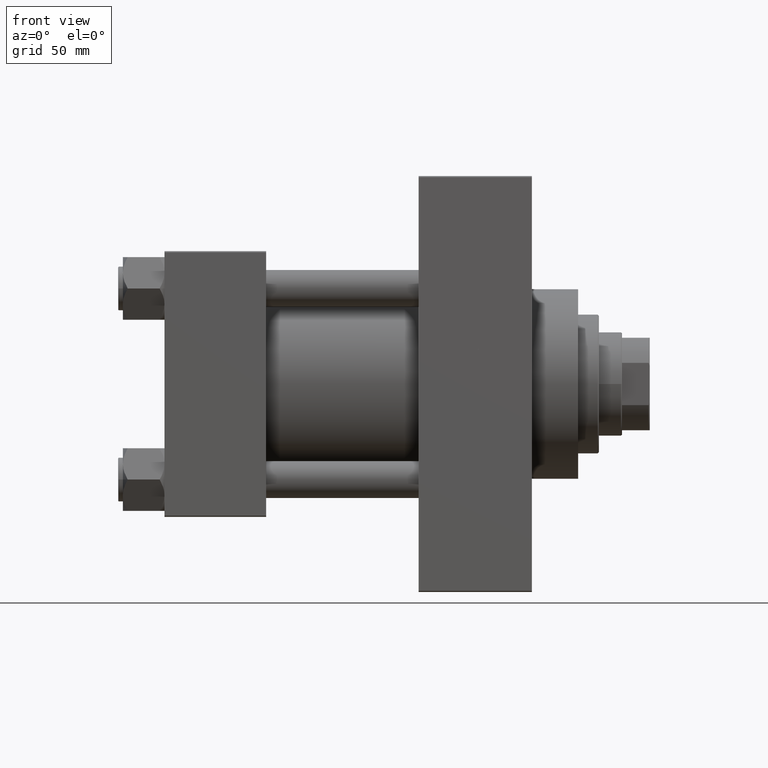
[diagram: clean part render]
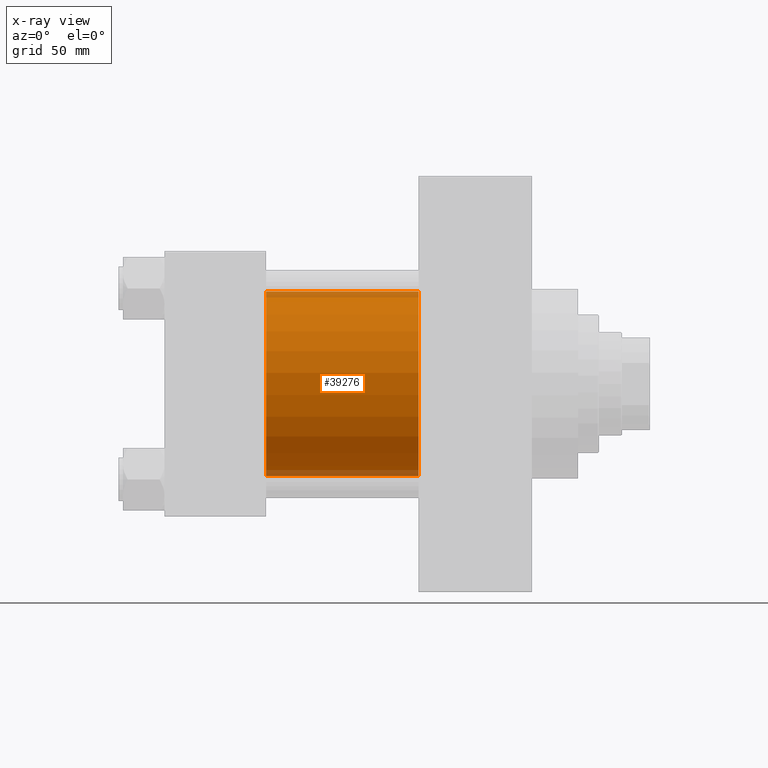
[diagram: x-ray — body ghosted, one internal face saturated and labeled with its STEP entity id]
A machine part, front view, then the same camera in x-ray: the body is ghosted and one INTERNAL B-rep face — a face not visible from any outside direction — is saturated and labeled: STEP entity #39276.
In plain terms, the highlighted cylindrical surface (partial cylindrical patch) has radius 40 mm, axis along (-1, -0, -0).
Its self-contained STEP definition (entity closure, byte-faithful):
#876 = CARTESIAN_POINT ( 'NONE',  ( 110.0000000000000000, 2.296501982624201990E-15, -40.00000000000000000 ) ) ;
#1167 = CIRCLE ( 'NONE', #22114, 40.00000000000000000 ) ;
#1912 = DIRECTION ( 'NONE',  ( 1.000000000000000000, 0.000000000000000000, 0.000000000000000000 ) ) ;
#2225 = CARTESIAN_POINT ( 'NONE',  ( 44.00000000000000000, 2.296501982624201990E-15, -40.00000000000000000 ) ) ;
#5518 = EDGE_CURVE ( 'NONE', #20764, #43881, #8199, .T. ) ;
#6215 = ORIENTED_EDGE ( 'NONE', *, *, #20526, .F. ) ;
#8199 = LINE ( 'NONE', #876, #26031 ) ;
#8864 = VERTEX_POINT ( 'NONE', #33333 ) ;
#11518 = EDGE_CURVE ( 'NONE', #29040, #20764, #1167, .T. ) ;
#14256 = AXIS2_PLACEMENT_3D ( 'NONE', #36426, #1912, #45457 ) ;
#15527 = DIRECTION ( 'NONE',  ( -1.000000000000000000, -0.000000000000000000, -0.000000000000000000 ) ) ;
#18758 = ORIENTED_EDGE ( 'NONE', *, *, #11518, .T. ) ;
#19294 = DIRECTION ( 'NONE',  ( 0.000000000000000000, 0.000000000000000000, 1.000000000000000000 ) ) ;
#20415 = AXIS2_PLACEMENT_3D ( 'NONE', #27596, #15527, #19294 ) ;
#20526 = EDGE_CURVE ( 'NONE', #8864, #43881, #48827, .T. ) ;
#20764 = VERTEX_POINT ( 'NONE', #47669 ) ;
#22114 = AXIS2_PLACEMENT_3D ( 'NONE', #36815, #33037, #48124 ) ;
#23824 = FACE_OUTER_BOUND ( 'NONE', #26973, .T. ) ;
#26031 = VECTOR ( 'NONE', #27595, 1000.000000000000000 ) ;
#26973 = EDGE_LOOP ( 'NONE', ( #18758, #47025, #6215, #47725 ) ) ;
#27595 = DIRECTION ( 'NONE',  ( -1.000000000000000000, -0.000000000000000000, -0.000000000000000000 ) ) ;
#27596 = CARTESIAN_POINT ( 'NONE',  ( 110.0000000000000000, -2.602085213965210642E-15, 0.000000000000000000 ) ) ;
#29040 = VERTEX_POINT ( 'NONE', #48464 ) ;
#31139 = EDGE_CURVE ( 'NONE', #29040, #8864, #38960, .T. ) ;
#33037 = DIRECTION ( 'NONE',  ( 1.000000000000000000, 0.000000000000000000, 0.000000000000000000 ) ) ;
#33333 = CARTESIAN_POINT ( 'NONE',  ( 44.00000000000000000, -2.602085213965210642E-15, 40.00000000000000000 ) ) ;
#36426 = CARTESIAN_POINT ( 'NONE',  ( 44.00000000000000000, -2.602085213965210642E-15, 0.000000000000000000 ) ) ;
#36815 = CARTESIAN_POINT ( 'NONE',  ( 110.0000000000000000, -2.602085213965210642E-15, 0.000000000000000000 ) ) ;
#38960 = LINE ( 'NONE', #46985, #41964 ) ;
#39276 = ADVANCED_FACE ( 'NONE', ( #23824 ), #43196, .F. ) ;
#41964 = VECTOR ( 'NONE', #46740, 1000.000000000000000 ) ;
#43196 = CYLINDRICAL_SURFACE ( 'NONE', #20415, 40.00000000000000000 ) ;
#43881 = VERTEX_POINT ( 'NONE', #2225 ) ;
#45457 = DIRECTION ( 'NONE',  ( 0.000000000000000000, 0.000000000000000000, -1.000000000000000000 ) ) ;
#46740 = DIRECTION ( 'NONE',  ( -1.000000000000000000, -0.000000000000000000, -0.000000000000000000 ) ) ;
#46985 = CARTESIAN_POINT ( 'NONE',  ( 110.0000000000000000, -2.602085213965210642E-15, 40.00000000000000000 ) ) ;
#47025 = ORIENTED_EDGE ( 'NONE', *, *, #5518, .T. ) ;
#47669 = CARTESIAN_POINT ( 'NONE',  ( 110.0000000000000000, 2.296501982624201990E-15, -40.00000000000000000 ) ) ;
#47725 = ORIENTED_EDGE ( 'NONE', *, *, #31139, .F. ) ;
#48124 = DIRECTION ( 'NONE',  ( 0.000000000000000000, 0.000000000000000000, -1.000000000000000000 ) ) ;
#48464 = CARTESIAN_POINT ( 'NONE',  ( 110.0000000000000000, -2.602085213965210642E-15, 40.00000000000000000 ) ) ;
#48827 = CIRCLE ( 'NONE', #14256, 40.00000000000000000 ) ;